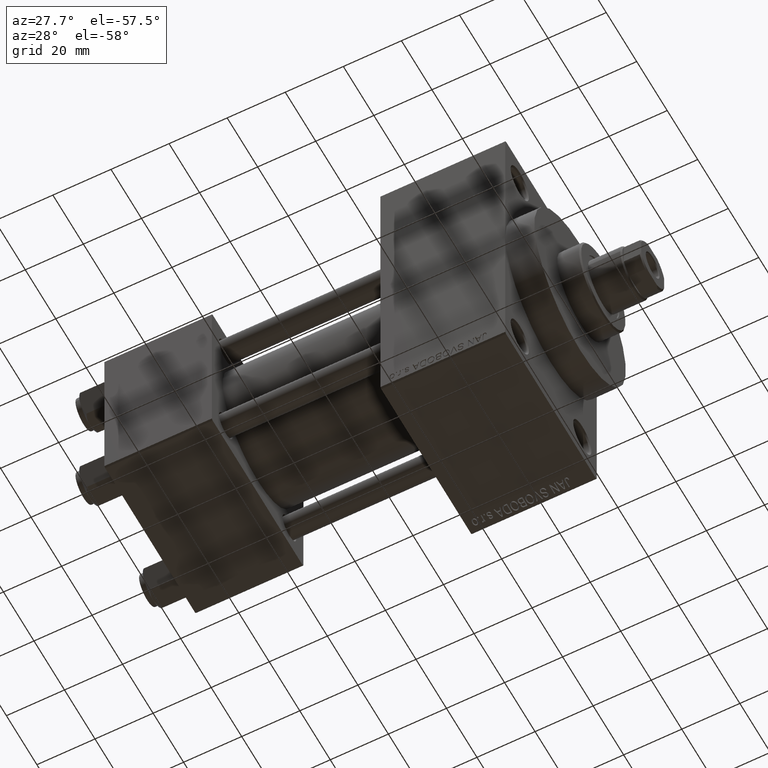
[diagram: clean part render]
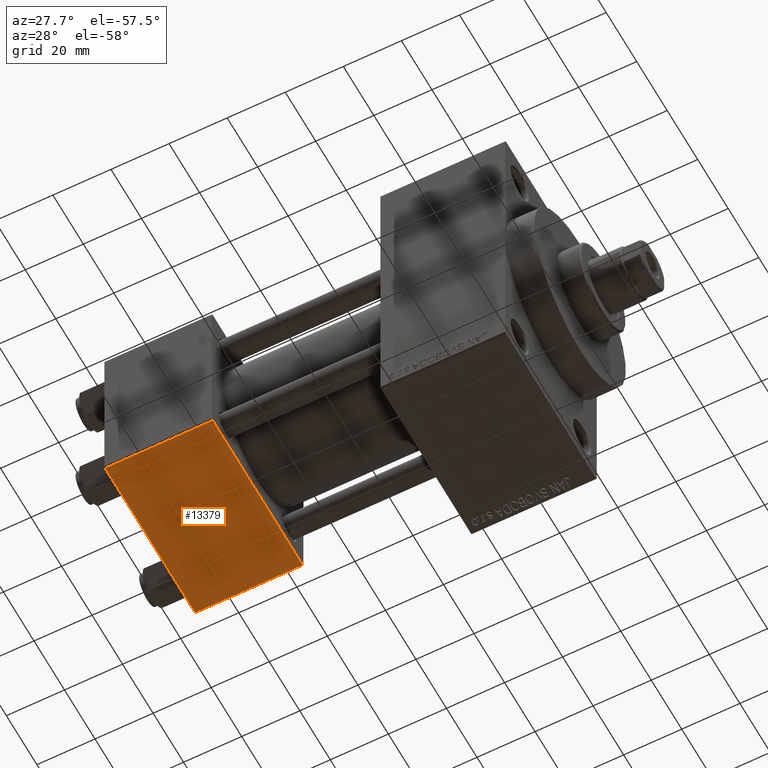
[diagram: same view with one face highlighted and labeled with its STEP entity id]
A machine part, auxiliary view. The second image highlights one B-rep face of the part: STEP entity #13379.
In plain terms, the highlighted planar face has unit normal (0, 0, -1).
Its self-contained STEP definition (entity closure, byte-faithful):
#339 = CARTESIAN_POINT ( 'NONE',  ( 0.000000000000000000, 29.99999999999999289, -30.00000000000000000 ) ) ;
#462 = CARTESIAN_POINT ( 'NONE',  ( 37.00000000000000000, 29.99999999999999289, -30.00000000000000000 ) ) ;
#887 = ORIENTED_EDGE ( 'NONE', *, *, #32230, .F. ) ;
#1276 = CARTESIAN_POINT ( 'NONE',  ( 37.00000000000000000, 29.49999999999997868, -30.00000000000000000 ) ) ;
#1738 = VECTOR ( 'NONE', #24070, 1000.000000000000000 ) ;
#1863 = VERTEX_POINT ( 'NONE', #1276 ) ;
#2495 = EDGE_CURVE ( 'NONE', #1863, #44735, #18601, .T. ) ;
#3249 = CARTESIAN_POINT ( 'NONE',  ( 37.00000000000000000, 29.99999999999999289, -30.00000000000000000 ) ) ;
#5455 = LINE ( 'NONE', #19549, #1738 ) ;
#8476 = CARTESIAN_POINT ( 'NONE',  ( 37.00000000000000000, -29.50000000000000000, -30.00000000000000711 ) ) ;
#9265 = LINE ( 'NONE', #45813, #46706 ) ;
#9938 = DIRECTION ( 'NONE',  ( 0.000000000000000000, 1.156482317317871725E-16, -1.000000000000000000 ) ) ;
#12567 = VERTEX_POINT ( 'NONE', #37799 ) ;
#13379 = ADVANCED_FACE ( 'NONE', ( #20682 ), #46267, .T. ) ;
#13536 = DIRECTION ( 'NONE',  ( 1.000000000000000000, 0.000000000000000000, 0.000000000000000000 ) ) ;
#14927 = VERTEX_POINT ( 'NONE', #35366 ) ;
#18469 = EDGE_CURVE ( 'NONE', #44735, #12567, #5455, .T. ) ;
#18601 = LINE ( 'NONE', #462, #34126 ) ;
#19307 = DIRECTION ( 'NONE',  ( 0.000000000000000000, -1.000000000000000000, -1.156482317317871725E-16 ) ) ;
#19549 = CARTESIAN_POINT ( 'NONE',  ( 0.000000000000000000, -29.50000000000001066, -30.00000000000000711 ) ) ;
#20682 = FACE_OUTER_BOUND ( 'NONE', #40553, .T. ) ;
#23456 = ORIENTED_EDGE ( 'NONE', *, *, #18469, .T. ) ;
#24070 = DIRECTION ( 'NONE',  ( -1.000000000000000000, 0.000000000000000000, 0.000000000000000000 ) ) ;
#32230 = EDGE_CURVE ( 'NONE', #14927, #12567, #36624, .T. ) ;
#32727 = ORIENTED_EDGE ( 'NONE', *, *, #2495, .T. ) ;
#32935 = VECTOR ( 'NONE', #39511, 1000.000000000000000 ) ;
#34126 = VECTOR ( 'NONE', #19307, 1000.000000000000000 ) ;
#35366 = CARTESIAN_POINT ( 'NONE',  ( 0.000000000000000000, 29.49999999999997868, -30.00000000000000000 ) ) ;
#36624 = LINE ( 'NONE', #339, #32935 ) ;
#37781 = EDGE_CURVE ( 'NONE', #14927, #1863, #9265, .T. ) ;
#37799 = CARTESIAN_POINT ( 'NONE',  ( 0.000000000000000000, -29.50000000000000000, -30.00000000000000711 ) ) ;
#39099 = DIRECTION ( 'NONE',  ( 0.000000000000000000, 1.000000000000000000, 1.156482317317871725E-16 ) ) ;
#39511 = DIRECTION ( 'NONE',  ( 0.000000000000000000, -1.000000000000000000, -1.156482317317871725E-16 ) ) ;
#40206 = ORIENTED_EDGE ( 'NONE', *, *, #37781, .T. ) ;
#40466 = AXIS2_PLACEMENT_3D ( 'NONE', #3249, #9938, #39099 ) ;
#40553 = EDGE_LOOP ( 'NONE', ( #887, #40206, #32727, #23456 ) ) ;
#44735 = VERTEX_POINT ( 'NONE', #8476 ) ;
#45813 = CARTESIAN_POINT ( 'NONE',  ( 37.00000000000000000, 29.49999999999997868, -30.00000000000000000 ) ) ;
#46267 = PLANE ( 'NONE',  #40466 ) ;
#46706 = VECTOR ( 'NONE', #13536, 1000.000000000000000 ) ;